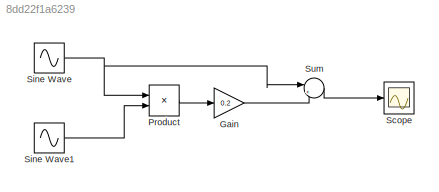
MODEL slx_8dd22f1a6239
KIND model
CONFIG AbsTol = auto
CONFIG EnableMultiTasking = off
CONFIG FixedStep = auto
CONFIG MaxStep = auto
CONFIG MinStep = auto
CONFIG RelTol = 1e-3
CONFIG SampleTimeConstraint = Unconstrained
CONFIG SolverName = VariableStepAuto
CONFIG StartTime = 0.0
CONFIG StopTime = 10.0
BLOCK [Gain] Gain
  Gain = 0.2
BLOCK [Product] Product
BLOCK [Scope] Scope
  Floating = off
  NumInputPorts = 3
  ScopeSpecificationString = Simulink.scopes.TimeScopeBlockCfg('CurrentConfiguration', extmgr.ConfigurationSet(extmgr.Configuration('Core','General UI',true),extmgr.Configuration('Core','Source UI',true),extmgr.Configuration('Sources','WiredSimulink',true),extmgr.Configuration('Visuals','Time Domain',true,'SerializedDisplays',{struct('MinYLimReal','-6.54031','MaxYLimReal','6.49877','YLabelReal','','MinYLimMag','0.00000','MaxY...<+1411ch>
BLOCK [Sin] Sine Wave
  Amplitude = 5
  Frequency = 628.32
  SampleTime = 0
BLOCK [Sin] Sine Wave1
  Frequency = 6.28
  SampleTime = 0
BLOCK [Sum] Sum
  Inputs = |++
LINE Gain:1 -> Sum:2
LINE Product:1 -> Gain:1
LINE Sine Wave1:1 -> Product:2
NET Sine Wave:1 -> Product:1, Sum:1
LINE Sum:1 -> Scope:1
note: NET lines group one-source signal fan-out (src -> all destinations, sorted); 1:1 wires keep LINE
